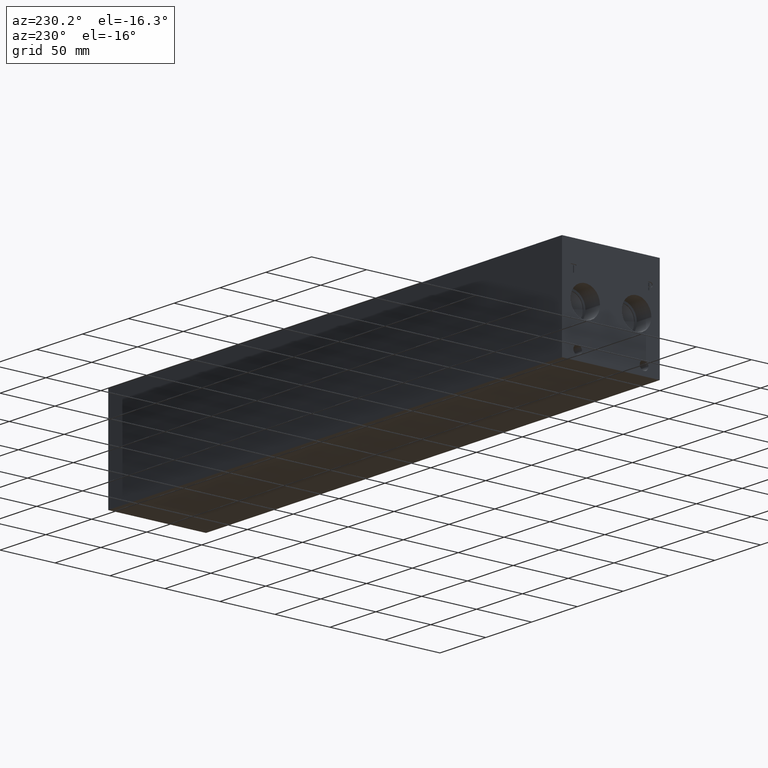
[diagram: clean part render]
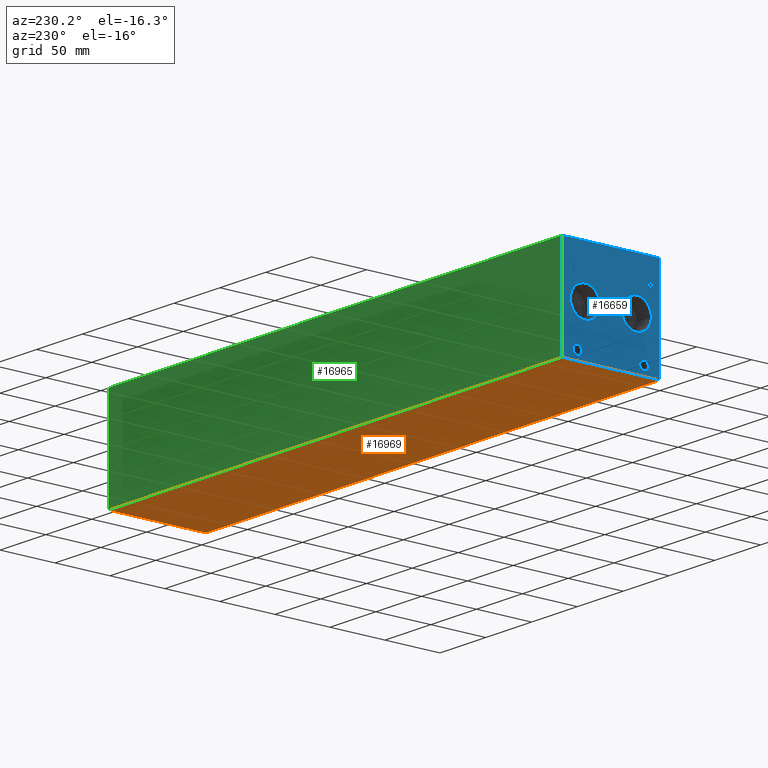
[diagram: same view with three faces highlighted in distinct colors, each labeled with its STEP entity id]
A machine part, auxiliary view with three faces highlighted in distinct colors.
Their STEP definitions:

[orange] entity #16969 — the highlighted planar face has unit normal (0, 0, 1).
#2327=FACE_OUTER_BOUND('',#3384,.T.);
#3384=EDGE_LOOP('',(#15002,#15003,#15004,#15005));
#3418=LINE('',#21742,#4902);
#4533=LINE('',#27491,#6017);
#4592=LINE('',#27763,#6076);
#4867=LINE('',#29395,#6351);
#4902=VECTOR('',#18112,10.);
#6017=VECTOR('',#19989,10.);
#6076=VECTOR('',#20102,10.);
#6351=VECTOR('',#21661,10.);
#6375=VERTEX_POINT('',#21740);
#6376=VERTEX_POINT('',#21741);
#7421=VERTEX_POINT('',#27490);
#7479=VERTEX_POINT('',#27762);
#8028=EDGE_CURVE('',#6375,#6376,#3418,.T.);
#9573=EDGE_CURVE('',#7421,#6375,#4533,.T.);
#9656=EDGE_CURVE('',#6376,#7479,#4592,.T.);
#10330=EDGE_CURVE('',#7479,#7421,#4867,.T.);
#15002=ORIENTED_EDGE('',*,*,#8028,.F.);
#15003=ORIENTED_EDGE('',*,*,#9573,.F.);
#15004=ORIENTED_EDGE('',*,*,#10330,.F.);
#15005=ORIENTED_EDGE('',*,*,#9656,.F.);
#15478=PLANE('',#18050);
#16969=ADVANCED_FACE('',(#2327),#15478,.F.);
#18050=AXIS2_PLACEMENT_3D('',#29400,#21669,#21670);
#18112=DIRECTION('',(1.,0.,0.));
#19989=DIRECTION('',(0.,-1.,0.));
#20102=DIRECTION('',(0.,1.,0.));
#21661=DIRECTION('',(-1.,0.,0.));
#21669=DIRECTION('center_axis',(0.,0.,1.));
#21670=DIRECTION('ref_axis',(1.,0.,0.));
#21740=CARTESIAN_POINT('',(0.,0.,0.));
#21741=CARTESIAN_POINT('',(495.3,0.,0.));
#21742=CARTESIAN_POINT('',(0.,0.,0.));
#27490=CARTESIAN_POINT('',(0.,88.9,0.));
#27491=CARTESIAN_POINT('',(0.,88.9,0.));
#27762=CARTESIAN_POINT('',(495.3,88.9,0.));
#27763=CARTESIAN_POINT('',(495.3,0.,0.));
#29395=CARTESIAN_POINT('',(495.3,88.9,0.));
#29400=CARTESIAN_POINT('Origin',(247.65,44.45,0.));

[blue] entity #16659 — the highlighted planar face has unit normal (-1, 0, 0).
#444=CIRCLE('',#17378,3.9624);
#445=CIRCLE('',#17379,3.9624);
#446=CIRCLE('',#17380,3.9624);
#447=CIRCLE('',#17381,3.9624);
#448=CIRCLE('',#17382,13.462);
#449=CIRCLE('',#17383,13.462);
#450=CIRCLE('',#17384,13.462);
#451=CIRCLE('',#17385,13.462);
#1225=B_SPLINE_CURVE_WITH_KNOTS('',2,(#27392,#27393,#27394,#27395),
 .UNSPECIFIED.,.F.,.F.,(3,1,3),(0.,1.,2.),.UNSPECIFIED.);
#1227=B_SPLINE_CURVE_WITH_KNOTS('',2,(#27413,#27414,#27415,#27416),
 .UNSPECIFIED.,.F.,.F.,(3,1,3),(0.,1.,2.),.UNSPECIFIED.);
#1229=B_SPLINE_CURVE_WITH_KNOTS('',2,(#27462,#27463,#27464,#27465),
 .UNSPECIFIED.,.F.,.F.,(3,1,3),(0.,1.,2.),.UNSPECIFIED.);
#1231=B_SPLINE_CURVE_WITH_KNOTS('',2,(#27480,#27481,#27482,#27483),
 .UNSPECIFIED.,.F.,.F.,(3,1,3),(0.,1.,2.),.UNSPECIFIED.);
#1342=FACE_BOUND('',#2966,.T.);
#1343=FACE_BOUND('',#2967,.T.);
#1344=FACE_BOUND('',#2968,.T.);
#1345=FACE_BOUND('',#2969,.T.);
#1346=FACE_BOUND('',#2970,.T.);
#1347=FACE_BOUND('',#2971,.T.);
#2017=FACE_OUTER_BOUND('',#2965,.T.);
#2965=EDGE_LOOP('',(#13421,#13422,#13423,#13424));
#2966=EDGE_LOOP('',(#13425,#13426));
#2967=EDGE_LOOP('',(#13427,#13428));
#2968=EDGE_LOOP('',(#13429,#13430));
#2969=EDGE_LOOP('',(#13431,#13432));
#2970=EDGE_LOOP('',(#13433,#13434,#13435,#13436,#13437,#13438,#13439,#13440));
#2971=EDGE_LOOP('',(#13441,#13442,#13443,#13444,#13445,#13446,#13447,#13448,
#13449));
#3421=LINE('',#21747,#4905);
#4517=LINE('',#27425,#6001);
#4520=LINE('',#27431,#6004);
#4523=LINE('',#27437,#6007);
#4526=LINE('',#27443,#6010);
#4529=LINE('',#27449,#6013);
#4533=LINE('',#27491,#6017);
#4534=LINE('',#27493,#6018);
#4535=LINE('',#27494,#6019);
#4536=LINE('',#27513,#6020);
#4537=LINE('',#27515,#6021);
#4538=LINE('',#27517,#6022);
#4539=LINE('',#27519,#6023);
#4540=LINE('',#27521,#6024);
#4541=LINE('',#27523,#6025);
#4542=LINE('',#27525,#6026);
#4543=LINE('',#27526,#6027);
#4905=VECTOR('',#18115,10.);
#6001=VECTOR('',#19961,10.);
#6004=VECTOR('',#19966,10.);
#6007=VECTOR('',#19971,10.);
#6010=VECTOR('',#19976,10.);
#6013=VECTOR('',#19981,10.);
#6017=VECTOR('',#19989,10.);
#6018=VECTOR('',#19990,10.);
#6019=VECTOR('',#19991,10.);
#6020=VECTOR('',#20008,10.);
#6021=VECTOR('',#20009,10.);
#6022=VECTOR('',#20010,10.);
#6023=VECTOR('',#20011,10.);
#6024=VECTOR('',#20012,10.);
#6025=VECTOR('',#20013,10.);
#6026=VECTOR('',#20014,10.);
#6027=VECTOR('',#20015,10.);
#6375=VERTEX_POINT('',#21740);
#6378=VERTEX_POINT('',#21745);
#7403=VERTEX_POINT('',#27390);
#7404=VERTEX_POINT('',#27391);
#7407=VERTEX_POINT('',#27412);
#7409=VERTEX_POINT('',#27424);
#7411=VERTEX_POINT('',#27430);
#7413=VERTEX_POINT('',#27436);
#7415=VERTEX_POINT('',#27442);
#7417=VERTEX_POINT('',#27448);
#7419=VERTEX_POINT('',#27461);
#7421=VERTEX_POINT('',#27490);
#7422=VERTEX_POINT('',#27492);
#7423=VERTEX_POINT('',#27495);
#7424=VERTEX_POINT('',#27496);
#7425=VERTEX_POINT('',#27499);
#7426=VERTEX_POINT('',#27500);
#7427=VERTEX_POINT('',#27503);
#7428=VERTEX_POINT('',#27504);
#7429=VERTEX_POINT('',#27507);
#7430=VERTEX_POINT('',#27508);
#7431=VERTEX_POINT('',#27511);
#7432=VERTEX_POINT('',#27512);
#7433=VERTEX_POINT('',#27514);
#7434=VERTEX_POINT('',#27516);
#7435=VERTEX_POINT('',#27518);
#7436=VERTEX_POINT('',#27520);
#7437=VERTEX_POINT('',#27522);
#7438=VERTEX_POINT('',#27524);
#8031=EDGE_CURVE('',#6375,#6378,#3421,.T.);
#9546=EDGE_CURVE('',#7403,#7404,#1225,.T.);
#9550=EDGE_CURVE('',#7407,#7403,#1227,.T.);
#9553=EDGE_CURVE('',#7409,#7407,#4517,.T.);
#9556=EDGE_CURVE('',#7411,#7409,#4520,.T.);
#9559=EDGE_CURVE('',#7413,#7411,#4523,.T.);
#9562=EDGE_CURVE('',#7415,#7413,#4526,.T.);
#9565=EDGE_CURVE('',#7417,#7415,#4529,.T.);
#9568=EDGE_CURVE('',#7419,#7417,#1229,.T.);
#9571=EDGE_CURVE('',#7404,#7419,#1231,.T.);
#9573=EDGE_CURVE('',#7421,#6375,#4533,.T.);
#9574=EDGE_CURVE('',#7422,#6378,#4534,.T.);
#9575=EDGE_CURVE('',#7421,#7422,#4535,.T.);
#9576=EDGE_CURVE('',#7423,#7424,#444,.T.);
#9577=EDGE_CURVE('',#7424,#7423,#445,.T.);
#9578=EDGE_CURVE('',#7425,#7426,#446,.T.);
#9579=EDGE_CURVE('',#7426,#7425,#447,.T.);
#9580=EDGE_CURVE('',#7427,#7428,#448,.T.);
#9581=EDGE_CURVE('',#7428,#7427,#449,.T.);
#9582=EDGE_CURVE('',#7429,#7430,#450,.T.);
#9583=EDGE_CURVE('',#7430,#7429,#451,.T.);
#9584=EDGE_CURVE('',#7431,#7432,#4536,.T.);
#9585=EDGE_CURVE('',#7432,#7433,#4537,.T.);
#9586=EDGE_CURVE('',#7433,#7434,#4538,.T.);
#9587=EDGE_CURVE('',#7434,#7435,#4539,.T.);
#9588=EDGE_CURVE('',#7435,#7436,#4540,.T.);
#9589=EDGE_CURVE('',#7436,#7437,#4541,.T.);
#9590=EDGE_CURVE('',#7437,#7438,#4542,.T.);
#9591=EDGE_CURVE('',#7438,#7431,#4543,.T.);
#13421=ORIENTED_EDGE('',*,*,#9573,.T.);
#13422=ORIENTED_EDGE('',*,*,#8031,.T.);
#13423=ORIENTED_EDGE('',*,*,#9574,.F.);
#13424=ORIENTED_EDGE('',*,*,#9575,.F.);
#13425=ORIENTED_EDGE('',*,*,#9576,.T.);
#13426=ORIENTED_EDGE('',*,*,#9577,.T.);
#13427=ORIENTED_EDGE('',*,*,#9578,.T.);
#13428=ORIENTED_EDGE('',*,*,#9579,.T.);
#13429=ORIENTED_EDGE('',*,*,#9580,.T.);
#13430=ORIENTED_EDGE('',*,*,#9581,.T.);
#13431=ORIENTED_EDGE('',*,*,#9582,.T.);
#13432=ORIENTED_EDGE('',*,*,#9583,.T.);
#13433=ORIENTED_EDGE('',*,*,#9584,.T.);
#13434=ORIENTED_EDGE('',*,*,#9585,.T.);
#13435=ORIENTED_EDGE('',*,*,#9586,.T.);
#13436=ORIENTED_EDGE('',*,*,#9587,.T.);
#13437=ORIENTED_EDGE('',*,*,#9588,.T.);
#13438=ORIENTED_EDGE('',*,*,#9589,.T.);
#13439=ORIENTED_EDGE('',*,*,#9590,.T.);
#13440=ORIENTED_EDGE('',*,*,#9591,.T.);
#13441=ORIENTED_EDGE('',*,*,#9546,.T.);
#13442=ORIENTED_EDGE('',*,*,#9571,.T.);
#13443=ORIENTED_EDGE('',*,*,#9568,.T.);
#13444=ORIENTED_EDGE('',*,*,#9565,.T.);
#13445=ORIENTED_EDGE('',*,*,#9562,.T.);
#13446=ORIENTED_EDGE('',*,*,#9559,.T.);
#13447=ORIENTED_EDGE('',*,*,#9556,.T.);
#13448=ORIENTED_EDGE('',*,*,#9553,.T.);
#13449=ORIENTED_EDGE('',*,*,#9550,.T.);
#15373=PLANE('',#17377);
#16659=ADVANCED_FACE('',(#2017,#1342,#1343,#1344,#1345,#1346,#1347),#15373,
 .T.);
#17377=AXIS2_PLACEMENT_3D('',#27489,#19987,#19988);
#17378=AXIS2_PLACEMENT_3D('',#27497,#19992,#19993);
#17379=AXIS2_PLACEMENT_3D('',#27498,#19994,#19995);
#17380=AXIS2_PLACEMENT_3D('',#27501,#19996,#19997);
#17381=AXIS2_PLACEMENT_3D('',#27502,#19998,#19999);
#17382=AXIS2_PLACEMENT_3D('',#27505,#20000,#20001);
#17383=AXIS2_PLACEMENT_3D('',#27506,#20002,#20003);
#17384=AXIS2_PLACEMENT_3D('',#27509,#20004,#20005);
#17385=AXIS2_PLACEMENT_3D('',#27510,#20006,#20007);
#18115=DIRECTION('',(0.,0.,1.));
#19961=DIRECTION('',(0.,-1.,-5.56775304226775E-15));
#19966=DIRECTION('',(0.,-3.14708893596576E-15,1.));
#19971=DIRECTION('',(0.,1.,0.));
#19976=DIRECTION('',(0.,2.81413604853751E-15,-1.));
#19981=DIRECTION('',(0.,1.,0.));
#19987=DIRECTION('center_axis',(-1.,0.,0.));
#19988=DIRECTION('ref_axis',(0.,-1.,0.));
#19989=DIRECTION('',(0.,-1.,0.));
#19990=DIRECTION('',(0.,-1.,0.));
#19991=DIRECTION('',(0.,0.,1.));
#19992=DIRECTION('center_axis',(1.,0.,0.));
#19993=DIRECTION('ref_axis',(0.,1.,0.));
#19994=DIRECTION('center_axis',(1.,0.,0.));
#19995=DIRECTION('ref_axis',(0.,1.,0.));
#19996=DIRECTION('center_axis',(1.,0.,0.));
#19997=DIRECTION('ref_axis',(0.,1.,0.));
#19998=DIRECTION('center_axis',(1.,0.,0.));
#19999=DIRECTION('ref_axis',(0.,1.,0.));
#20000=DIRECTION('center_axis',(1.,0.,0.));
#20001=DIRECTION('ref_axis',(0.,1.,0.));
#20002=DIRECTION('center_axis',(1.,0.,0.));
#20003=DIRECTION('ref_axis',(0.,1.,0.));
#20004=DIRECTION('center_axis',(1.,0.,0.));
#20005=DIRECTION('ref_axis',(0.,1.,0.));
#20006=DIRECTION('center_axis',(1.,0.,0.));
#20007=DIRECTION('ref_axis',(0.,1.,0.));
#20008=DIRECTION('',(0.,1.,0.));
#20009=DIRECTION('',(0.,-3.17280044688052E-15,1.));
#20010=DIRECTION('',(0.,1.,4.16909044227778E-15));
#20011=DIRECTION('',(0.,0.,1.));
#20012=DIRECTION('',(0.,-1.,-3.47984565141734E-15));
#20013=DIRECTION('',(0.,0.,-1.));
#20014=DIRECTION('',(0.,1.,0.));
#20015=DIRECTION('',(0.,3.17280044688052E-15,-1.));
#21740=CARTESIAN_POINT('',(0.,0.,0.));
#21745=CARTESIAN_POINT('',(0.,0.,88.9));
#21747=CARTESIAN_POINT('',(0.,0.,0.));
#27390=CARTESIAN_POINT('',(0.,7.21193279764059,69.4537681439707));
#27391=CARTESIAN_POINT('',(0.,6.455490345468,67.9357373726039));
#27392=CARTESIAN_POINT('Ctrl Pts',(0.,7.21193279764059,69.4537681439707));
#27393=CARTESIAN_POINT('Ctrl Pts',(0.,6.85686797315142,69.2119123939563));
#27394=CARTESIAN_POINT('Ctrl Pts',(0.,6.455490345468,68.4657616758269));
#27395=CARTESIAN_POINT('Ctrl Pts',(0.,6.455490345468,67.9357373726039));
#27412=CARTESIAN_POINT('',(0.,8.87404784561168,69.8499999046326));
#27413=CARTESIAN_POINT('Ctrl Pts',(0.,8.87404784561168,69.8499999046326));
#27414=CARTESIAN_POINT('Ctrl Pts',(0.,8.30800247323763,69.8499999046326));
#27415=CARTESIAN_POINT('Ctrl Pts',(0.,7.51553895191395,69.6647486918556));
#27416=CARTESIAN_POINT('Ctrl Pts',(0.,7.21193279764059,69.4537681439707));
#27424=CARTESIAN_POINT('',(0.,10.4692666223022,69.8499999046326));
#27425=CARTESIAN_POINT('',(0.,49.6846333111509,69.8499999046328));
#27430=CARTESIAN_POINT('',(0.,10.4692666223022,63.5));
#27431=CARTESIAN_POINT('',(0.,10.4692666223023,31.7499999999999));
#27436=CARTESIAN_POINT('',(0.,9.62534443076272,63.5));
#27437=CARTESIAN_POINT('',(0.,49.2626722153814,63.5));
#27442=CARTESIAN_POINT('',(0.,9.62534443076271,65.8670988299279));
#27443=CARTESIAN_POINT('',(0.,9.6253444307628,32.9335494149638));
#27448=CARTESIAN_POINT('',(0.,8.91006891476277,65.8670988299279));
#27449=CARTESIAN_POINT('',(0.,48.9050344573814,65.8670988299279));
#27461=CARTESIAN_POINT('',(0.,7.01124398379889,66.5257698086904));
#27462=CARTESIAN_POINT('Ctrl Pts',(0.,7.01124398379889,66.5257698086904));
#27463=CARTESIAN_POINT('Ctrl Pts',(0.,7.34057947318016,66.2015801863307));
#27464=CARTESIAN_POINT('Ctrl Pts',(0.,8.2308144679139,65.8670988299279));
#27465=CARTESIAN_POINT('Ctrl Pts',(0.,8.91006891476277,65.8670988299279));
#27480=CARTESIAN_POINT('Ctrl Pts',(0.,6.455490345468,67.9357373726039));
#27481=CARTESIAN_POINT('Ctrl Pts',(0.,6.455490345468,67.5240680108774));
#27482=CARTESIAN_POINT('Ctrl Pts',(0.,6.7488047656982,66.7830631597695));
#27483=CARTESIAN_POINT('Ctrl Pts',(0.,7.01124398379889,66.5257698086904));
#27489=CARTESIAN_POINT('Origin',(0.,88.9,0.));
#27490=CARTESIAN_POINT('',(0.,88.9,0.));
#27491=CARTESIAN_POINT('',(0.,88.9,0.));
#27492=CARTESIAN_POINT('',(0.,88.9,88.9));
#27493=CARTESIAN_POINT('',(0.,88.9,88.9));
#27494=CARTESIAN_POINT('',(0.,88.9,0.));
#27495=CARTESIAN_POINT('',(0.,78.5876,7.92479999999999));
#27496=CARTESIAN_POINT('',(0.,70.6628,7.92479999999999));
#27497=CARTESIAN_POINT('Origin',(0.,74.6252,7.92479999999999));
#27498=CARTESIAN_POINT('Origin',(0.,74.6252,7.92479999999999));
#27499=CARTESIAN_POINT('',(0.,18.2372,7.92479999999999));
#27500=CARTESIAN_POINT('',(0.,10.3124,7.92479999999999));
#27501=CARTESIAN_POINT('Origin',(0.,14.2748,7.92479999999999));
#27502=CARTESIAN_POINT('Origin',(0.,14.2748,7.92479999999999));
#27503=CARTESIAN_POINT('',(0.,34.544,44.45));
#27504=CARTESIAN_POINT('',(1.11022302462516E-15,7.62,44.45));
#27505=CARTESIAN_POINT('Origin',(0.,21.082,44.45));
#27506=CARTESIAN_POINT('Origin',(0.,21.082,44.45));
#27507=CARTESIAN_POINT('',(0.,81.28,44.45));
#27508=CARTESIAN_POINT('',(1.11022302462516E-15,54.356,44.45));
#27509=CARTESIAN_POINT('Origin',(0.,67.818,44.45));
#27510=CARTESIAN_POINT('Origin',(0.,67.818,44.45));
#27511=CARTESIAN_POINT('',(0.,77.993334728547,63.5));
#27512=CARTESIAN_POINT('',(0.,78.8372569200865,63.5));
#27513=CARTESIAN_POINT('',(0.,83.4466673642735,63.5));
#27514=CARTESIAN_POINT('',(0.,78.8372569200865,69.0987033194815));
#27515=CARTESIAN_POINT('',(0.,78.8372569200866,31.75));
#27516=CARTESIAN_POINT('',(0.,80.9676458670216,69.0987033194815));
#27517=CARTESIAN_POINT('',(0.,83.8686284600431,69.0987033194816));
#27518=CARTESIAN_POINT('',(0.,80.9676458670216,69.8499999046325));
#27519=CARTESIAN_POINT('',(0.,80.9676458670216,34.5493516597408));
#27520=CARTESIAN_POINT('',(0.,75.8629457816119,69.8499999046325));
#27521=CARTESIAN_POINT('',(0.,84.9338229335107,69.8499999046326));
#27522=CARTESIAN_POINT('',(0.,75.8629457816119,69.0987033194815));
#27523=CARTESIAN_POINT('',(0.,75.8629457816119,34.9249999523163));
#27524=CARTESIAN_POINT('',(0.,77.993334728547,69.0987033194815));
#27525=CARTESIAN_POINT('',(0.,82.381472890806,69.0987033194815));
#27526=CARTESIAN_POINT('',(0.,77.9933347285471,34.5493516597407));

[green] entity #16965 — the highlighted planar face has unit normal (0, 1, 0).
#2323=FACE_OUTER_BOUND('',#3332,.T.);
#3332=EDGE_LOOP('',(#14884,#14885,#14886,#14887));
#4535=LINE('',#27494,#6019);
#4593=LINE('',#27765,#6077);
#4867=LINE('',#29395,#6351);
#4868=LINE('',#29396,#6352);
#6019=VECTOR('',#19991,10.);
#6077=VECTOR('',#20103,10.);
#6351=VECTOR('',#21661,10.);
#6352=VECTOR('',#21662,10.);
#7421=VERTEX_POINT('',#27490);
#7422=VERTEX_POINT('',#27492);
#7479=VERTEX_POINT('',#27762);
#7480=VERTEX_POINT('',#27764);
#9575=EDGE_CURVE('',#7421,#7422,#4535,.T.);
#9657=EDGE_CURVE('',#7479,#7480,#4593,.T.);
#10330=EDGE_CURVE('',#7479,#7421,#4867,.T.);
#10331=EDGE_CURVE('',#7480,#7422,#4868,.T.);
#14884=ORIENTED_EDGE('',*,*,#10330,.T.);
#14885=ORIENTED_EDGE('',*,*,#9575,.T.);
#14886=ORIENTED_EDGE('',*,*,#10331,.F.);
#14887=ORIENTED_EDGE('',*,*,#9657,.F.);
#15474=PLANE('',#18046);
#16965=ADVANCED_FACE('',(#2323),#15474,.T.);
#18046=AXIS2_PLACEMENT_3D('',#29394,#21659,#21660);
#19991=DIRECTION('',(0.,0.,1.));
#20103=DIRECTION('',(0.,0.,1.));
#21659=DIRECTION('center_axis',(0.,1.,0.));
#21660=DIRECTION('ref_axis',(-1.,0.,0.));
#21661=DIRECTION('',(-1.,0.,0.));
#21662=DIRECTION('',(-1.,0.,0.));
#27490=CARTESIAN_POINT('',(0.,88.9,0.));
#27492=CARTESIAN_POINT('',(0.,88.9,88.9));
#27494=CARTESIAN_POINT('',(0.,88.9,0.));
#27762=CARTESIAN_POINT('',(495.3,88.9,0.));
#27764=CARTESIAN_POINT('',(495.3,88.9,88.9));
#27765=CARTESIAN_POINT('',(495.3,88.9,0.));
#29394=CARTESIAN_POINT('Origin',(495.3,88.9,0.));
#29395=CARTESIAN_POINT('',(495.3,88.9,0.));
#29396=CARTESIAN_POINT('',(495.3,88.9,88.9));